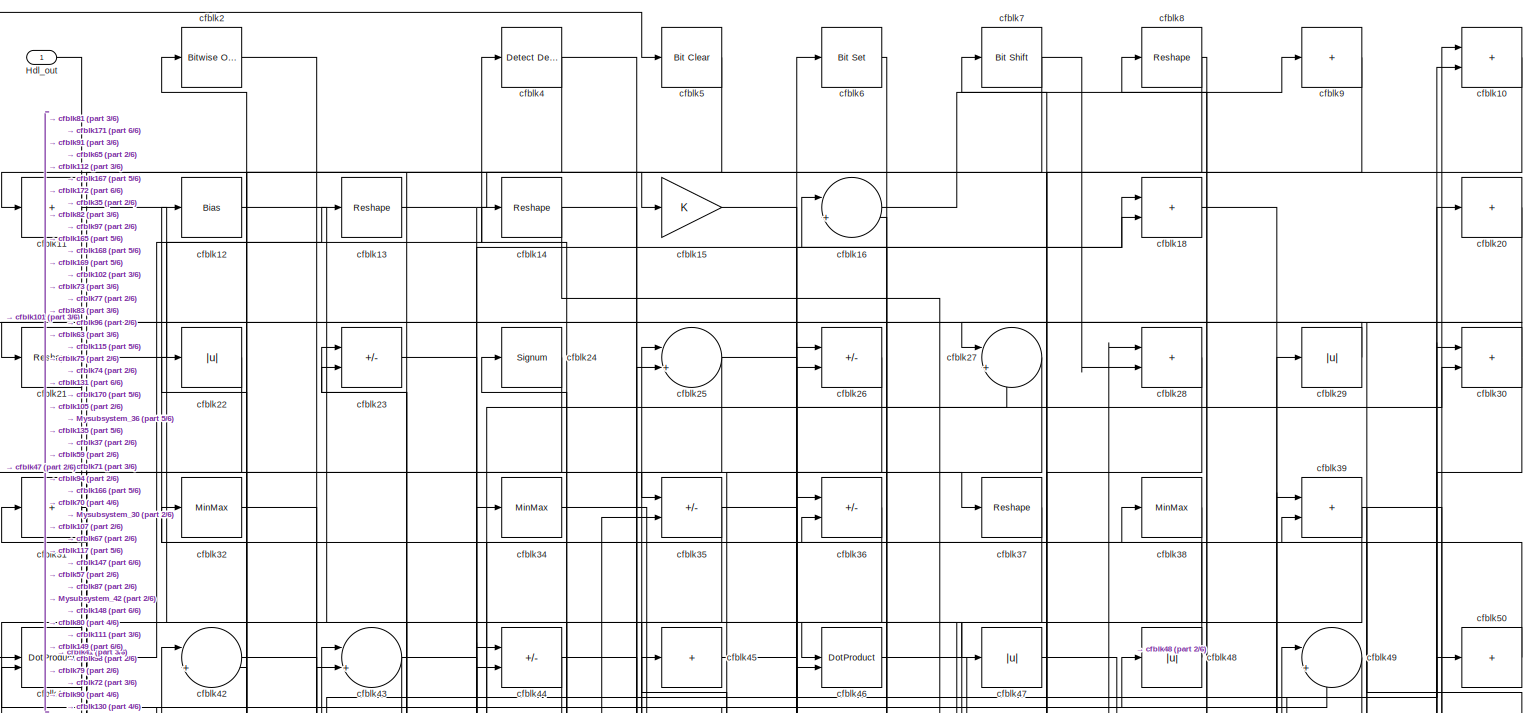
[diagram: root canvas - part 1/6, full width, top band]
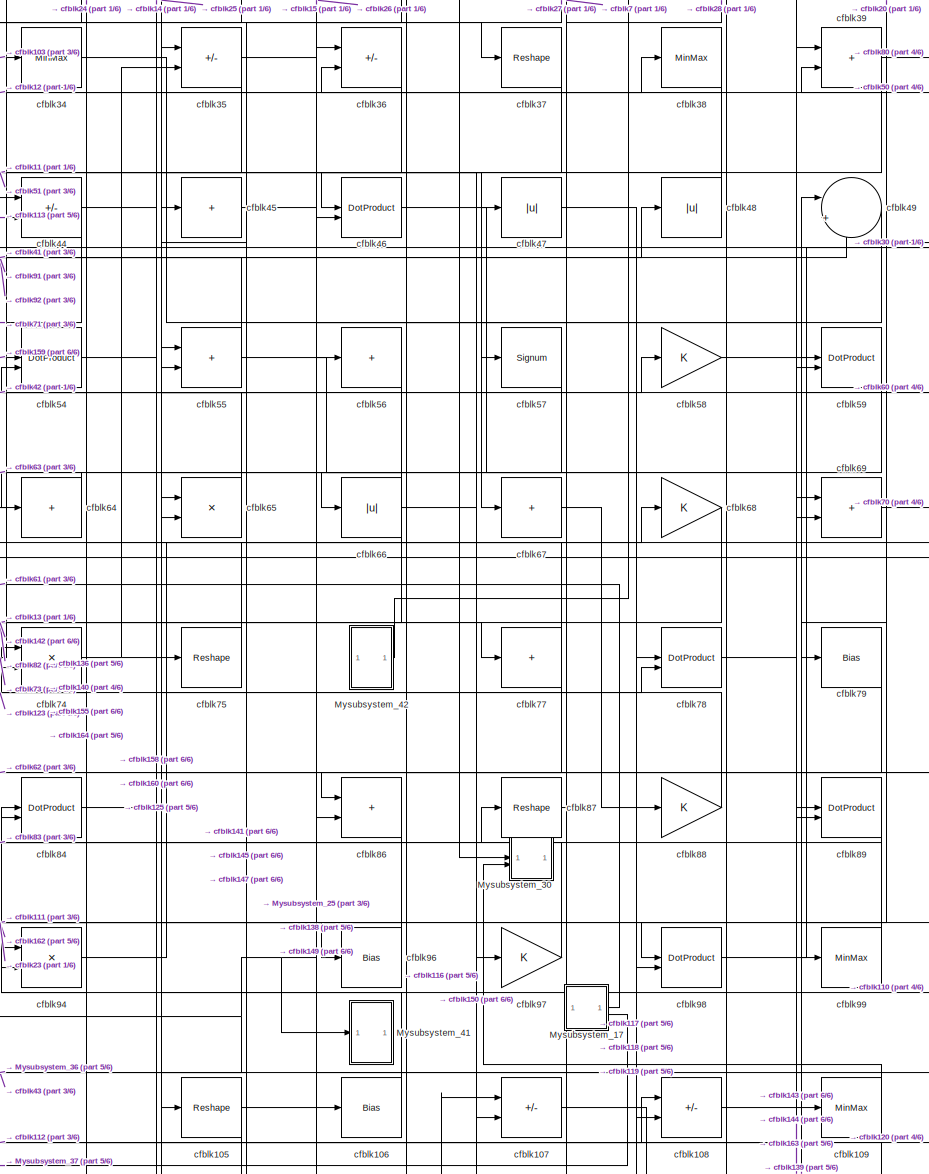
[diagram: root canvas - part 2/6, central region]
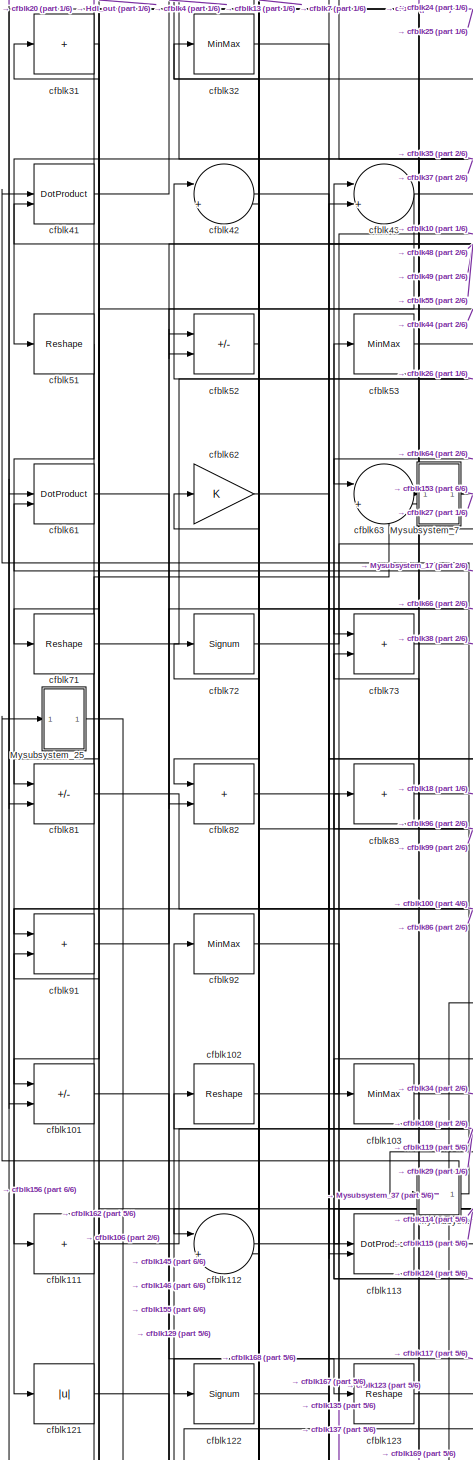
[diagram: root canvas - part 3/6, middle left region]
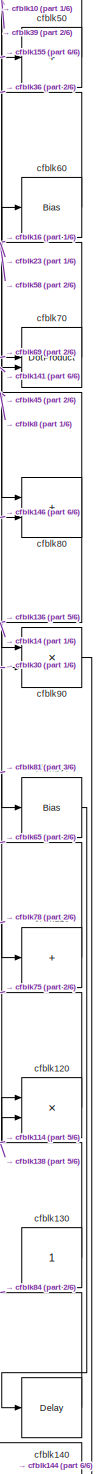
[diagram: root canvas - part 4/6, middle right region]
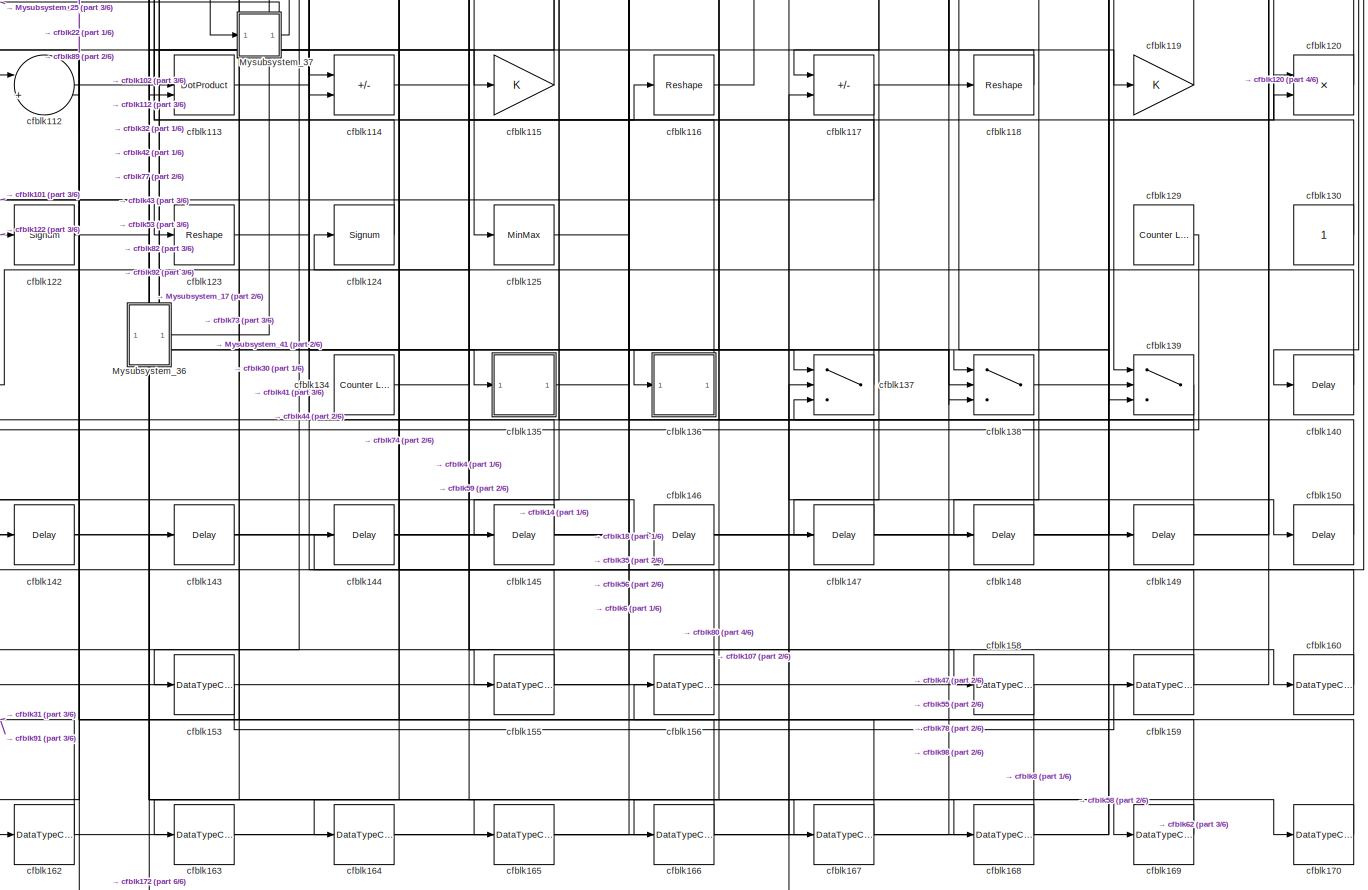
[diagram: root canvas - part 5/6, full width, bottom band]
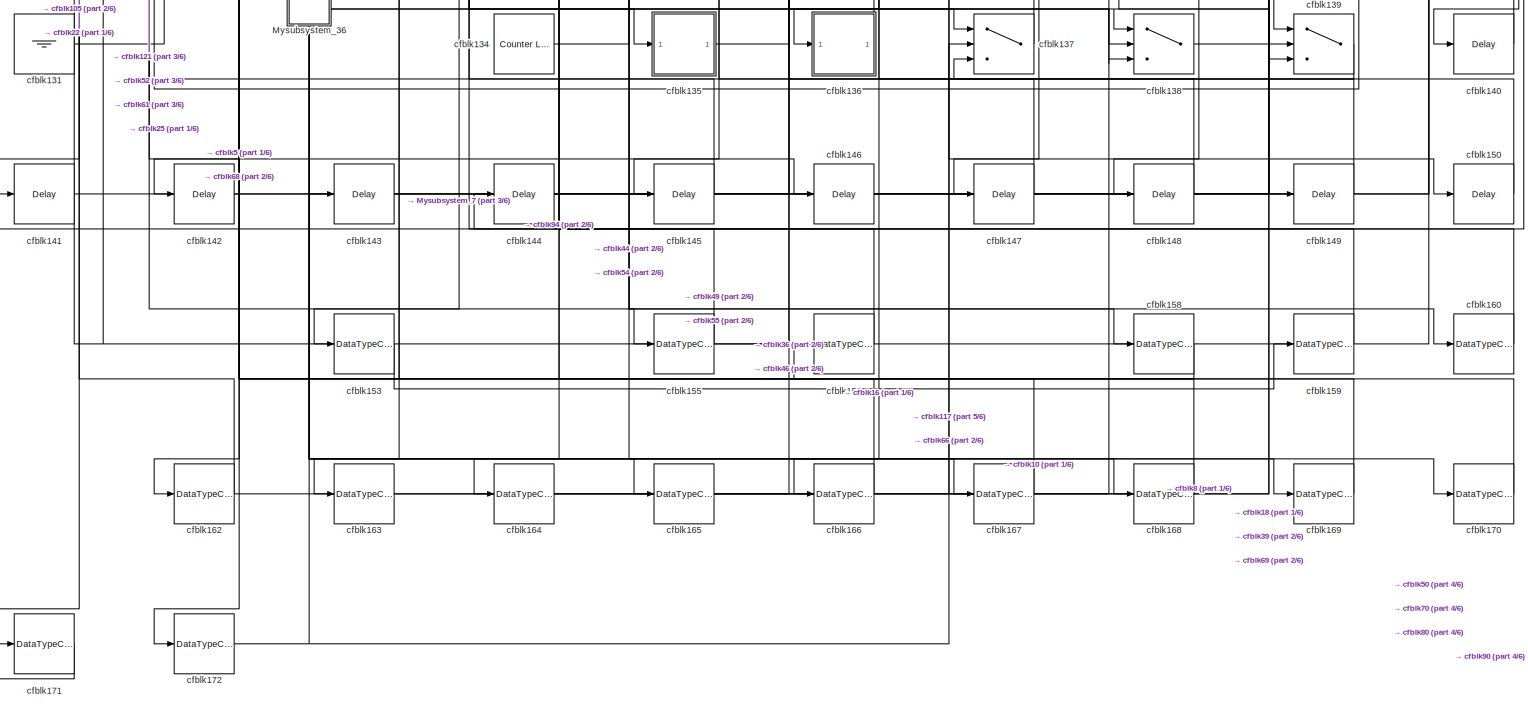
[diagram: root canvas - part 6/6, full width, bottom band]
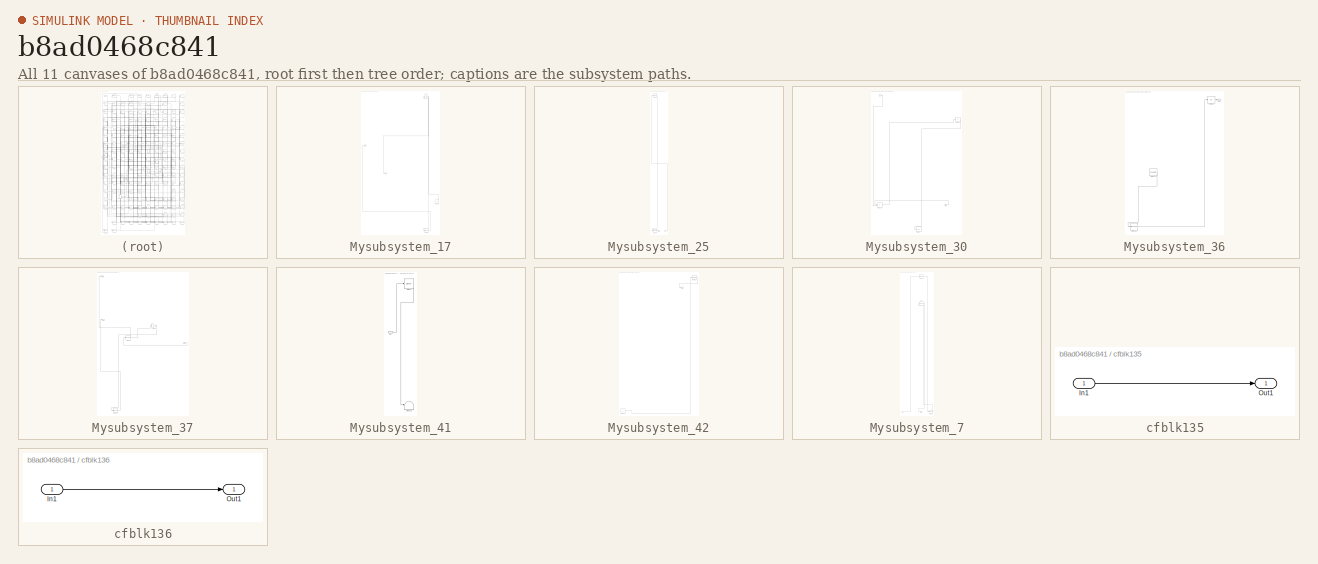
[diagram: thumbnail index - all 11 canvases of the model, root first then tree order]
MODEL slx_b8ad0468c841
KIND model
CONFIG AbsTol = auto
CONFIG EnableMultiTasking = off
CONFIG FixedStep = auto
CONFIG MaxStep = auto
CONFIG MinStep = auto
CONFIG RelTol = 1e-3
CONFIG SampleTimeConstraint = Unconstrained
CONFIG SolverName = VariableStepAuto
CONFIG StartTime = 0.0
CONFIG StopTime = 10.0
BLOCK [Outport] Hdl_out
  OutDataTypeStr = uint8
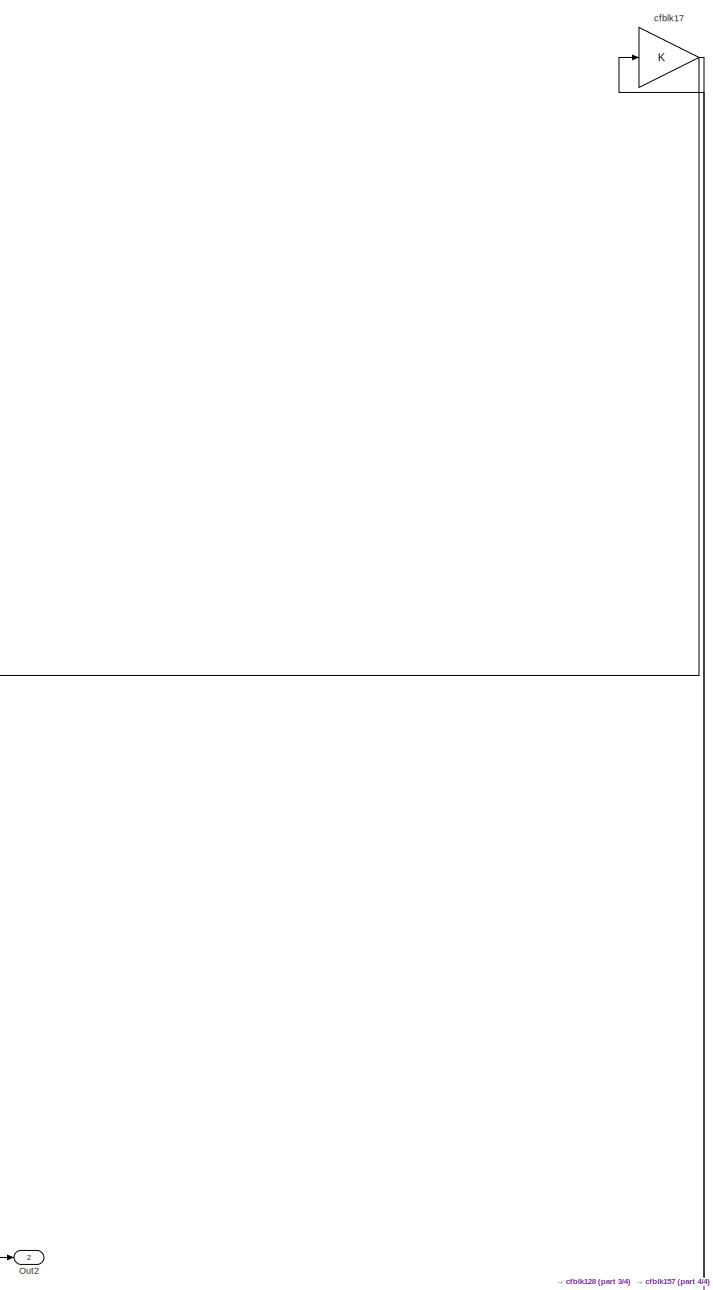
[diagram: Mysubsystem_17 - part 1/4, top center region]
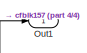
[diagram: Mysubsystem_17 - part 2/4, middle left region]
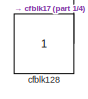
[diagram: Mysubsystem_17 - part 3/4, bottom right region]
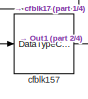
[diagram: Mysubsystem_17 - part 4/4, bottom right region]
BLOCK [SubSystem] Mysubsystem_17
  RTWFcnName = Mysubsystem_17
  RTWFcnNameOpts = User specified
  RTWFileNameOpts = Use function name
  RTWSystemCode = Reusable function
  TreatAsAtomicUnit = on
BLOCK [Outport] Mysubsystem_17/Out1
BLOCK [Outport] Mysubsystem_17/Out2
  Port = 2
BLOCK [Constant] Mysubsystem_17/cfblk128
  SampleTime = -1
BLOCK [DataTypeConversion] Mysubsystem_17/cfblk157
  OutDataTypeStr = uint8
  RndMeth = Floor
  SaturateOnIntegerOverflow = off
BLOCK [Gain] Mysubsystem_17/cfblk17
BLOCK [SubSystem] Mysubsystem_25
  RTWFcnName = Mysubsystem_25
  RTWFcnNameOpts = User specified
  RTWFileNameOpts = Use function name
  RTWSystemCode = Reusable function
  TreatAsAtomicUnit = on
BLOCK [Outport] Mysubsystem_25/Out1
BLOCK [Inport] Mysubsystem_25/U
BLOCK [Reference] Mysubsystem_25/cfblk1  REF=hdlsllib/Logic and Bit
Operations/Detect Rise
Nonnegative
  SourceBlock = hdlsllib/Logic and Bit\nOperations/Detect Rise\nNonnegative
  SourceType = Detect Rise Nonnegative
BLOCK [DataTypeConversion] Mysubsystem_25/cfblk151
  RndMeth = Floor
  SaturateOnIntegerOverflow = off
BLOCK [SubSystem] Mysubsystem_30
  RTWFcnName = Mysubsystem_30
  RTWFcnNameOpts = User specified
  RTWFileNameOpts = Use function name
  RTWSystemCode = Reusable function
  TreatAsAtomicUnit = on
BLOCK [Inport] Mysubsystem_30/In1
BLOCK [Inport] Mysubsystem_30/In2
  Port = 2
BLOCK [Product] Mysubsystem_30/cfblk104
  Inputs = */
  RndMeth = Zero
  SaturateOnIntegerOverflow = on
BLOCK [Display] Mysubsystem_30/cfblk127
  Decimation = 1
BLOCK [Sum] Mysubsystem_30/cfblk40
  IconShape = rectangular
  Inputs = +
BLOCK [SubSystem] Mysubsystem_36
  RTWFcnName = Mysubsystem_36
  RTWFcnNameOpts = User specified
  RTWFileNameOpts = Use function name
  RTWSystemCode = Reusable function
  TreatAsAtomicUnit = on
BLOCK [Outport] Mysubsystem_36/Out1
BLOCK [Reference] Mysubsystem_36/cfblk132  REF=hdlsllib/Sources/Counter
Free-Running
  SourceBlock = hdlsllib/Sources/Counter\nFree-Running
  SourceType = Counter Free-Running
BLOCK [DataTypeConversion] Mysubsystem_36/cfblk161
  OutDataTypeStr = uint8
  RndMeth = Floor
  SaturateOnIntegerOverflow = off
BLOCK [Abs] Mysubsystem_36/cfblk95
  SaturateOnIntegerOverflow = off
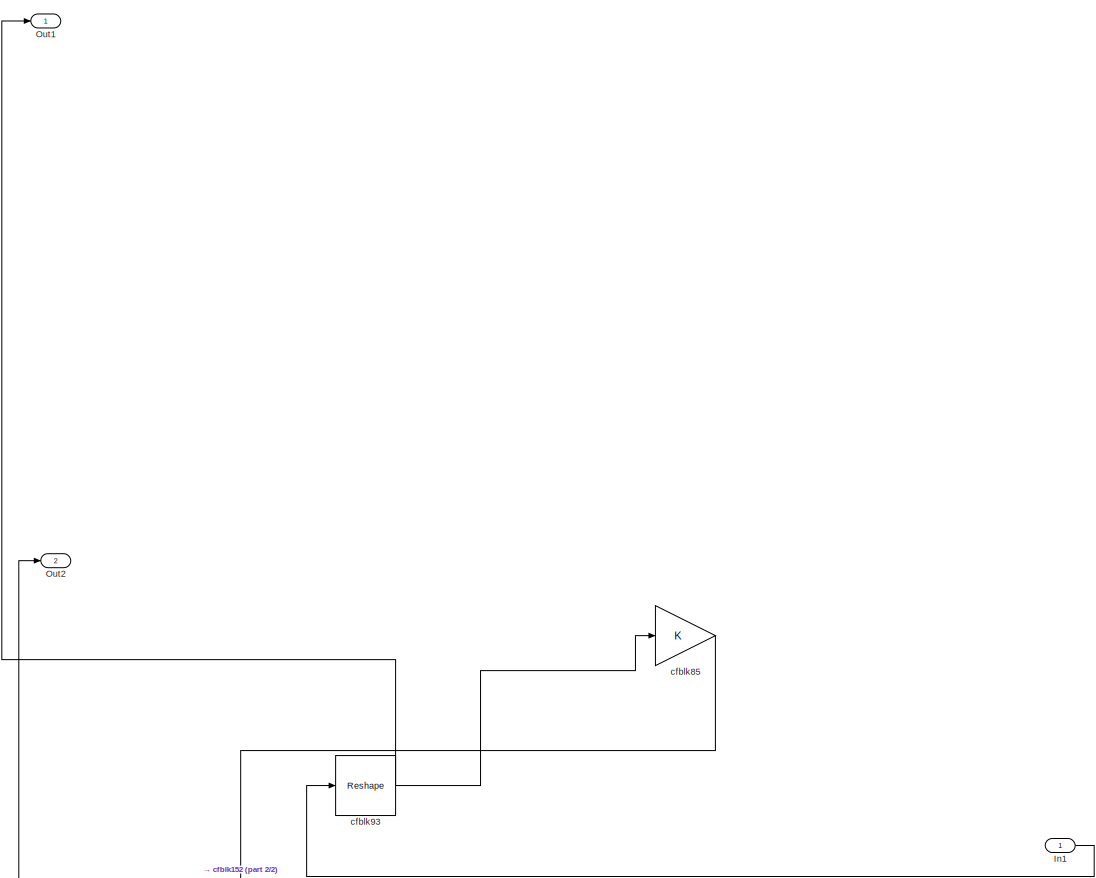
[diagram: Mysubsystem_37 - part 1/2, full width, top band]
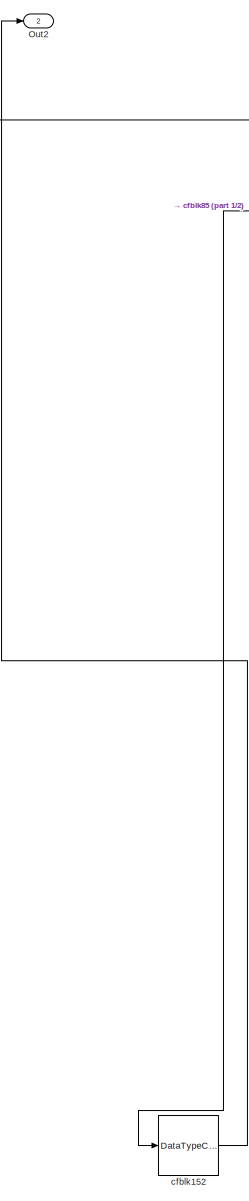
[diagram: Mysubsystem_37 - part 2/2, middle left region]
BLOCK [SubSystem] Mysubsystem_37
  RTWFcnName = Mysubsystem_37
  RTWFcnNameOpts = User specified
  RTWFileNameOpts = Use function name
  RTWSystemCode = Reusable function
  TreatAsAtomicUnit = on
BLOCK [Inport] Mysubsystem_37/In1
BLOCK [Outport] Mysubsystem_37/Out1
BLOCK [Outport] Mysubsystem_37/Out2
  Port = 2
BLOCK [DataTypeConversion] Mysubsystem_37/cfblk152
  OutDataTypeStr = uint8
  RndMeth = Floor
  SaturateOnIntegerOverflow = off
BLOCK [Gain] Mysubsystem_37/cfblk85
BLOCK [Reshape] Mysubsystem_37/cfblk93
BLOCK [SubSystem] Mysubsystem_41
  RTWFcnName = Mysubsystem_41
  RTWFcnNameOpts = User specified
  RTWFileNameOpts = Use function name
  RTWSystemCode = Reusable function
  TreatAsAtomicUnit = on
BLOCK [Inport] Mysubsystem_41/In1
BLOCK [Terminator] Mysubsystem_41/cfblk126
BLOCK [Signum] Mysubsystem_41/cfblk76
BLOCK [SubSystem] Mysubsystem_42
  RTWFcnName = Mysubsystem_42
  RTWFcnNameOpts = User specified
  RTWFileNameOpts = Use function name
  RTWSystemCode = Reusable function
  TreatAsAtomicUnit = on
BLOCK [Outport] Mysubsystem_42/Out1
BLOCK [Constant] Mysubsystem_42/cfblk133
  SampleTime = -1
BLOCK [Signum] Mysubsystem_42/cfblk19
BLOCK [SubSystem] Mysubsystem_7
  RTWFcnName = Mysubsystem_7
  RTWFcnNameOpts = User specified
  RTWFileNameOpts = Use function name
  RTWSystemCode = Reusable function
  TreatAsAtomicUnit = on
BLOCK [Outport] Mysubsystem_7/Out1
BLOCK [DataTypeConversion] Mysubsystem_7/cfblk154
  OutDataTypeStr = uint8
  RndMeth = Floor
  SaturateOnIntegerOverflow = off
BLOCK [Reference] Mysubsystem_7/cfblk3  REF=hdlsllib/Logic and Bit
Operations/Interval Test
  SourceBlock = hdlsllib/Logic and Bit\nOperations/Interval Test
  SourceType = Interval Test
BLOCK [Signum] Mysubsystem_7/cfblk33
BLOCK [Inport] Mysubsystem_7/u
BLOCK [Sum] cfblk10
  IconShape = rectangular
  OutDataTypeStr = uint8
BLOCK [Bias] cfblk100
  Bias = 0.0
  SaturateOnIntegerOverflow = off
BLOCK [Sum] cfblk101
  IconShape = rectangular
  Inputs = +-
  OutDataTypeStr = uint8
BLOCK [Reshape] cfblk102
BLOCK [MinMax] cfblk103
  OutDataTypeStr = uint8
BLOCK [Reshape] cfblk105
BLOCK [Bias] cfblk106
  Bias = 0.0
  SaturateOnIntegerOverflow = off
BLOCK [Sum] cfblk107
  IconShape = rectangular
  Inputs = +-
  OutDataTypeStr = uint8
BLOCK [Sum] cfblk108
  IconShape = rectangular
  Inputs = +-
  OutDataTypeStr = uint8
BLOCK [MinMax] cfblk109
  OutDataTypeStr = uint8
BLOCK [Sum] cfblk11
  IconShape = rectangular
  Inputs = +
  OutDataTypeStr = uint8
BLOCK [Sum] cfblk110
  IconShape = rectangular
  Inputs = +
  OutDataTypeStr = uint8
BLOCK [Sum] cfblk111
  IconShape = rectangular
  Inputs = +
  OutDataTypeStr = uint8
BLOCK [Sum] cfblk112
  Inputs = |++
  OutDataTypeStr = uint8
BLOCK [DotProduct] cfblk113
  OutDataTypeStr = uint8
BLOCK [Sum] cfblk114
  IconShape = rectangular
  Inputs = +-
  OutDataTypeStr = uint8
BLOCK [Gain] cfblk115
  OutDataTypeStr = uint8
BLOCK [Reshape] cfblk116
BLOCK [Sum] cfblk117
  IconShape = rectangular
  Inputs = +-
  OutDataTypeStr = uint8
BLOCK [Reshape] cfblk118
BLOCK [Gain] cfblk119
  OutDataTypeStr = uint8
BLOCK [Bias] cfblk12
  Bias = 0.0
  SaturateOnIntegerOverflow = off
BLOCK [Product] cfblk120
  Inputs = */
  OutDataTypeStr = uint8
  RndMeth = Zero
  SaturateOnIntegerOverflow = on
BLOCK [Abs] cfblk121
  OutDataTypeStr = uint8
  SaturateOnIntegerOverflow = off
BLOCK [Signum] cfblk122
BLOCK [Reshape] cfblk123
BLOCK [Signum] cfblk124
BLOCK [MinMax] cfblk125
  OutDataTypeStr = uint8
BLOCK [Reference] cfblk129  REF=hdlsllib/Sources/Counter
Limited
  SourceBlock = hdlsllib/Sources/Counter\nLimited
  SourceType = Counter Limited
BLOCK [Reshape] cfblk13
BLOCK [Constant] cfblk130
  OutDataTypeStr = uint8
  SampleTime = -1
BLOCK [Ground] cfblk131
BLOCK [Reference] cfblk134  REF=hdlsllib/Sources/Counter
Limited
  SourceBlock = hdlsllib/Sources/Counter\nLimited
  SourceType = Counter Limited
BLOCK [SubSystem] cfblk135
  LibrarySourceBlock = hdlsllib/Ports &\nSubsystems/Subsystem
BLOCK [Inport] cfblk135/In1
BLOCK [Outport] cfblk135/Out1
BLOCK [SubSystem] cfblk136
  LibrarySourceBlock = hdlsllib/Ports &\nSubsystems/Subsystem
BLOCK [Inport] cfblk136/In1
BLOCK [Outport] cfblk136/Out1
BLOCK [Switch] cfblk137
  InputSameDT = off
  OutDataTypeStr = uint8
  SaturateOnIntegerOverflow = off
BLOCK [Switch] cfblk138
  InputSameDT = off
  OutDataTypeStr = uint8
  SaturateOnIntegerOverflow = off
BLOCK [Switch] cfblk139
  InputSameDT = off
  OutDataTypeStr = uint8
  SaturateOnIntegerOverflow = off
BLOCK [Reshape] cfblk14
BLOCK [Delay] cfblk140
  InputPortMap = u0
  SampleTime = 1
BLOCK [Delay] cfblk141
  InputPortMap = u0
  SampleTime = 1
BLOCK [Delay] cfblk142
  InputPortMap = u0
  SampleTime = 1
BLOCK [Delay] cfblk143
  InputPortMap = u0
  SampleTime = 1
BLOCK [Delay] cfblk144
  InputPortMap = u0
  SampleTime = 1
BLOCK [Delay] cfblk145
  InputPortMap = u0
  SampleTime = 1
BLOCK [Delay] cfblk146
  InputPortMap = u0
  SampleTime = 1
BLOCK [Delay] cfblk147
  InputPortMap = u0
  SampleTime = 1
BLOCK [Delay] cfblk148
  InputPortMap = u0
  SampleTime = 1
BLOCK [Delay] cfblk149
  InputPortMap = u0
  SampleTime = 1
BLOCK [Gain] cfblk15
  OutDataTypeStr = uint8
BLOCK [Delay] cfblk150
  InputPortMap = u0
  SampleTime = 1
BLOCK [DataTypeConversion] cfblk153
  OutDataTypeStr = uint8
  RndMeth = Floor
  SaturateOnIntegerOverflow = off
BLOCK [DataTypeConversion] cfblk155
  OutDataTypeStr = uint8
  RndMeth = Floor
  SaturateOnIntegerOverflow = off
BLOCK [DataTypeConversion] cfblk156
  OutDataTypeStr = uint8
  RndMeth = Floor
  SaturateOnIntegerOverflow = off
BLOCK [DataTypeConversion] cfblk158
  OutDataTypeStr = uint8
  RndMeth = Floor
  SaturateOnIntegerOverflow = off
BLOCK [DataTypeConversion] cfblk159
  OutDataTypeStr = uint8
  RndMeth = Floor
  SaturateOnIntegerOverflow = off
BLOCK [Sum] cfblk16
  Inputs = |++
  OutDataTypeStr = uint8
BLOCK [DataTypeConversion] cfblk160
  OutDataTypeStr = uint8
  RndMeth = Floor
  SaturateOnIntegerOverflow = off
BLOCK [DataTypeConversion] cfblk162
  OutDataTypeStr = uint8
  RndMeth = Floor
  SaturateOnIntegerOverflow = off
BLOCK [DataTypeConversion] cfblk163
  OutDataTypeStr = uint8
  RndMeth = Floor
  SaturateOnIntegerOverflow = off
BLOCK [DataTypeConversion] cfblk164
  OutDataTypeStr = uint8
  RndMeth = Floor
  SaturateOnIntegerOverflow = off
BLOCK [DataTypeConversion] cfblk165
  OutDataTypeStr = uint8
  RndMeth = Floor
  SaturateOnIntegerOverflow = off
BLOCK [DataTypeConversion] cfblk166
  OutDataTypeStr = uint8
  RndMeth = Floor
  SaturateOnIntegerOverflow = off
BLOCK [DataTypeConversion] cfblk167
  OutDataTypeStr = uint8
  RndMeth = Floor
  SaturateOnIntegerOverflow = off
BLOCK [DataTypeConversion] cfblk168
  OutDataTypeStr = uint8
  RndMeth = Floor
  SaturateOnIntegerOverflow = off
BLOCK [DataTypeConversion] cfblk169
  OutDataTypeStr = uint8
  RndMeth = Floor
  SaturateOnIntegerOverflow = off
BLOCK [DataTypeConversion] cfblk170
  OutDataTypeStr = uint8
  RndMeth = Floor
  SaturateOnIntegerOverflow = off
BLOCK [DataTypeConversion] cfblk171
  OutDataTypeStr = uint8
  RndMeth = Floor
  SaturateOnIntegerOverflow = off
BLOCK [DataTypeConversion] cfblk172
  OutDataTypeStr = uint8
  RndMeth = Floor
  SaturateOnIntegerOverflow = off
BLOCK [Sum] cfblk18
  IconShape = rectangular
  OutDataTypeStr = uint8
BLOCK [Reference] cfblk2  REF=simulink/Logic and Bit
Operations/Bitwise
Operator
  LibrarySourceBlock = hdlsllib/Logic and Bit\nOperations/Bitwise\nOperator
  SourceBlock = simulink/Logic and Bit\nOperations/Bitwise\nOperator
  SourceType = Bitwise Operator
BLOCK [Sum] cfblk20
  IconShape = rectangular
  Inputs = +
  OutDataTypeStr = uint8
BLOCK [Reshape] cfblk21
BLOCK [Abs] cfblk22
  OutDataTypeStr = uint8
  SaturateOnIntegerOverflow = off
BLOCK [Sum] cfblk23
  IconShape = rectangular
  Inputs = +-
  OutDataTypeStr = uint8
BLOCK [Signum] cfblk24
BLOCK [Sum] cfblk25
  Inputs = |++
  OutDataTypeStr = uint8
BLOCK [Sum] cfblk26
  IconShape = rectangular
  Inputs = +-
  OutDataTypeStr = uint8
BLOCK [Sum] cfblk27
  Inputs = |++
  OutDataTypeStr = uint8
BLOCK [Sum] cfblk28
  IconShape = rectangular
  OutDataTypeStr = uint8
BLOCK [Abs] cfblk29
  OutDataTypeStr = uint8
  SaturateOnIntegerOverflow = off
BLOCK [Sum] cfblk30
  IconShape = rectangular
  OutDataTypeStr = uint8
BLOCK [Sum] cfblk31
  IconShape = rectangular
  Inputs = +
  OutDataTypeStr = uint8
BLOCK [MinMax] cfblk32
  OutDataTypeStr = uint8
BLOCK [MinMax] cfblk34
  OutDataTypeStr = uint8
BLOCK [Sum] cfblk35
  IconShape = rectangular
  Inputs = +-
  OutDataTypeStr = uint8
BLOCK [Sum] cfblk36
  IconShape = rectangular
  Inputs = +-
  OutDataTypeStr = uint8
BLOCK [Reshape] cfblk37
BLOCK [MinMax] cfblk38
  OutDataTypeStr = uint8
BLOCK [Sum] cfblk39
  IconShape = rectangular
  OutDataTypeStr = uint8
BLOCK [Reference] cfblk4  REF=simulink/Logic and Bit
Operations/Detect
Decrease
  LibrarySourceBlock = hdlsllib/Logic and Bit\nOperations/Detect\nDecrease
  SourceBlock = simulink/Logic and Bit\nOperations/Detect\nDecrease
  SourceType = Detect Decrease
BLOCK [DotProduct] cfblk41
  OutDataTypeStr = uint8
BLOCK [Sum] cfblk42
  Inputs = |++
  OutDataTypeStr = uint8
BLOCK [Sum] cfblk43
  Inputs = |++
  OutDataTypeStr = uint8
BLOCK [Sum] cfblk44
  IconShape = rectangular
  Inputs = +-
  OutDataTypeStr = uint8
BLOCK [Sum] cfblk45
  IconShape = rectangular
  Inputs = +
  OutDataTypeStr = uint8
BLOCK [DotProduct] cfblk46
  OutDataTypeStr = uint8
BLOCK [Abs] cfblk47
  OutDataTypeStr = uint8
  SaturateOnIntegerOverflow = off
BLOCK [Abs] cfblk48
  OutDataTypeStr = uint8
  SaturateOnIntegerOverflow = off
BLOCK [Sum] cfblk49
  Inputs = |++
  OutDataTypeStr = uint8
BLOCK [Reference] cfblk5  REF=simulink/Logic and Bit
Operations/Bit Clear
  LibrarySourceBlock = hdlsllib/Logic and Bit\nOperations/Bit Clear
  SourceBlock = simulink/Logic and Bit\nOperations/Bit Clear
  SourceType = Bit Clear
BLOCK [Sum] cfblk50
  IconShape = rectangular
  Inputs = +
  OutDataTypeStr = uint8
BLOCK [Reshape] cfblk51
BLOCK [Sum] cfblk52
  IconShape = rectangular
  Inputs = +-
  OutDataTypeStr = uint8
BLOCK [MinMax] cfblk53
  OutDataTypeStr = uint8
BLOCK [DotProduct] cfblk54
  OutDataTypeStr = uint8
BLOCK [Sum] cfblk55
  IconShape = rectangular
  OutDataTypeStr = uint8
BLOCK [Sum] cfblk56
  IconShape = rectangular
  Inputs = +
  OutDataTypeStr = uint8
BLOCK [Signum] cfblk57
BLOCK [Gain] cfblk58
  OutDataTypeStr = uint8
BLOCK [DotProduct] cfblk59
  OutDataTypeStr = uint8
BLOCK [Reference] cfblk6  REF=simulink/Logic and Bit
Operations/Bit Set
  LibrarySourceBlock = hdlsllib/Logic and Bit\nOperations/Bit Set
  SourceBlock = simulink/Logic and Bit\nOperations/Bit Set
  SourceType = Bit Set
BLOCK [Bias] cfblk60
  Bias = 0.0
  SaturateOnIntegerOverflow = off
BLOCK [DotProduct] cfblk61
  OutDataTypeStr = uint8
BLOCK [Gain] cfblk62
  OutDataTypeStr = uint8
BLOCK [Sum] cfblk63
  Inputs = |++
  OutDataTypeStr = uint8
BLOCK [Sum] cfblk64
  IconShape = rectangular
  Inputs = +
  OutDataTypeStr = uint8
BLOCK [Product] cfblk65
  Inputs = */
  OutDataTypeStr = uint8
  RndMeth = Zero
  SaturateOnIntegerOverflow = on
BLOCK [Abs] cfblk66
  OutDataTypeStr = uint8
  SaturateOnIntegerOverflow = off
BLOCK [Sum] cfblk67
  IconShape = rectangular
  Inputs = +
  OutDataTypeStr = uint8
BLOCK [Gain] cfblk68
  OutDataTypeStr = uint8
BLOCK [Sum] cfblk69
  IconShape = rectangular
  OutDataTypeStr = uint8
BLOCK [Reference] cfblk7  REF=hdlsllib/Logic and Bit
Operations/Bit Shift
  SourceBlock = hdlsllib/Logic and Bit\nOperations/Bit Shift
  SourceType = Bit Shift
BLOCK [DotProduct] cfblk70
  OutDataTypeStr = uint8
BLOCK [Reshape] cfblk71
BLOCK [Signum] cfblk72
BLOCK [Sum] cfblk73
  IconShape = rectangular
  OutDataTypeStr = uint8
BLOCK [Product] cfblk74
  Inputs = */
  OutDataTypeStr = uint8
  RndMeth = Zero
  SaturateOnIntegerOverflow = on
BLOCK [Reshape] cfblk75
BLOCK [Sum] cfblk77
  IconShape = rectangular
  Inputs = +
  OutDataTypeStr = uint8
BLOCK [DotProduct] cfblk78
  OutDataTypeStr = uint8
BLOCK [Bias] cfblk79
  Bias = 0.0
  SaturateOnIntegerOverflow = off
BLOCK [Reshape] cfblk8
BLOCK [Sum] cfblk80
  IconShape = rectangular
  OutDataTypeStr = uint8
BLOCK [Sum] cfblk81
  IconShape = rectangular
  Inputs = +-
  OutDataTypeStr = uint8
BLOCK [Sum] cfblk82
  IconShape = rectangular
  OutDataTypeStr = uint8
BLOCK [Sum] cfblk83
  IconShape = rectangular
  Inputs = +
  OutDataTypeStr = uint8
BLOCK [DotProduct] cfblk84
  OutDataTypeStr = uint8
BLOCK [Sum] cfblk86
  IconShape = rectangular
  OutDataTypeStr = uint8
BLOCK [Reshape] cfblk87
BLOCK [Gain] cfblk88
  OutDataTypeStr = uint8
BLOCK [DotProduct] cfblk89
  OutDataTypeStr = uint8
BLOCK [Sum] cfblk9
  IconShape = rectangular
  Inputs = +
  OutDataTypeStr = uint8
BLOCK [Product] cfblk90
  Inputs = */
  OutDataTypeStr = uint8
  RndMeth = Zero
  SaturateOnIntegerOverflow = on
BLOCK [Sum] cfblk91
  IconShape = rectangular
  OutDataTypeStr = uint8
BLOCK [MinMax] cfblk92
  OutDataTypeStr = uint8
BLOCK [Product] cfblk94
  Inputs = */
  OutDataTypeStr = uint8
  RndMeth = Zero
  SaturateOnIntegerOverflow = on
BLOCK [Bias] cfblk96
  Bias = 0.0
  SaturateOnIntegerOverflow = off
BLOCK [Gain] cfblk97
  OutDataTypeStr = uint8
BLOCK [DotProduct] cfblk98
  OutDataTypeStr = uint8
BLOCK [MinMax] cfblk99
  OutDataTypeStr = uint8
LINE Mysubsystem_17/cfblk128:1 -> Mysubsystem_17/cfblk17:1
LINE Mysubsystem_17/cfblk157:1 -> Mysubsystem_17/Out1:1
NET Mysubsystem_17/cfblk17:1 -> Mysubsystem_17/Out2:1, Mysubsystem_17/cfblk157:1
LINE Mysubsystem_17:1 -> cfblk61:2
LINE Mysubsystem_17:2 -> Mysubsystem_37:1
LINE Mysubsystem_25/U:1 -> Mysubsystem_25/cfblk1:1
LINE Mysubsystem_25/cfblk151:1 -> Mysubsystem_25/Out1:1
LINE Mysubsystem_25/cfblk1:1 -> Mysubsystem_25/cfblk151:1
NET Mysubsystem_25:1 -> Mysubsystem_7:1, cfblk106:1
LINE Mysubsystem_30/In1:1 -> Mysubsystem_30/cfblk104:2
LINE Mysubsystem_30/In2:1 -> Mysubsystem_30/cfblk104:1
LINE Mysubsystem_30/cfblk104:1 -> Mysubsystem_30/cfblk40:1
LINE Mysubsystem_30/cfblk40:1 -> Mysubsystem_30/cfblk127:1
LINE Mysubsystem_36/cfblk132:1 -> Mysubsystem_36/cfblk161:1
LINE Mysubsystem_36/cfblk161:1 -> Mysubsystem_36/cfblk95:1
LINE Mysubsystem_36/cfblk95:1 -> Mysubsystem_36/Out1:1
NET Mysubsystem_36:1 -> Mysubsystem_41:1, cfblk163:1, cfblk30:2
LINE Mysubsystem_37/In1:1 -> Mysubsystem_37/cfblk93:1
LINE Mysubsystem_37/cfblk152:1 -> Mysubsystem_37/Out2:1
LINE Mysubsystem_37/cfblk85:1 -> Mysubsystem_37/cfblk152:1
NET Mysubsystem_37/cfblk93:1 -> Mysubsystem_37/Out1:1, Mysubsystem_37/cfblk85:1
LINE Mysubsystem_37:1 -> cfblk41:1
LINE Mysubsystem_37:2 -> Mysubsystem_25:1
LINE Mysubsystem_41/In1:1 -> Mysubsystem_41/cfblk76:1
LINE Mysubsystem_41/cfblk76:1 -> Mysubsystem_41/cfblk126:1
LINE Mysubsystem_42/cfblk133:1 -> Mysubsystem_42/cfblk19:1
LINE Mysubsystem_42/cfblk19:1 -> Mysubsystem_42/Out1:1
LINE Mysubsystem_42:1 -> cfblk28:1
LINE Mysubsystem_7/cfblk154:1 -> Mysubsystem_7/cfblk33:1
LINE Mysubsystem_7/cfblk33:1 -> Mysubsystem_7/Out1:1
LINE Mysubsystem_7/cfblk3:1 -> Mysubsystem_7/cfblk154:1
LINE Mysubsystem_7/u:1 -> Mysubsystem_7/cfblk3:1
LINE Mysubsystem_7:1 -> cfblk153:1
LINE cfblk100:1 -> cfblk140:1
LINE cfblk101:1 -> cfblk123:1
NET cfblk102:1 -> cfblk10:2, cfblk114:2
LINE cfblk103:1 -> cfblk34:1
NET cfblk105:1 -> cfblk141:1, cfblk68:1
LINE cfblk106:1 -> cfblk84:1
LINE cfblk107:1 -> cfblk139:2
LINE cfblk108:1 -> cfblk49:1
LINE cfblk109:1 -> Mysubsystem_30:2
LINE cfblk10:1 -> cfblk147:1
LINE cfblk110:1 -> cfblk65:2
LINE cfblk111:1 -> cfblk29:1
NET cfblk112:1 -> cfblk108:1, cfblk115:1
NET cfblk113:1 -> cfblk138:3, cfblk44:2
LINE cfblk114:1 -> cfblk120:2
LINE cfblk115:1 -> cfblk14:1
LINE cfblk116:1 -> cfblk107:1
NET cfblk117:1 -> cfblk122:1, cfblk78:1
LINE cfblk118:1 -> cfblk113:1
LINE cfblk119:1 -> cfblk62:1
LINE cfblk11:1 -> cfblk67:1
LINE cfblk120:1 -> cfblk75:1
LINE cfblk121:1 -> cfblk146:1
LINE cfblk122:1 -> cfblk167:1
NET cfblk123:1 -> cfblk138:1, cfblk139:3, cfblk78:2
LINE cfblk124:1 -> cfblk43:1
LINE cfblk125:1 -> cfblk56:1
LINE cfblk129:1 -> cfblk92:1
LINE cfblk12:1 -> cfblk107:2
LINE cfblk130:1 -> cfblk10:1
LINE cfblk131:1 -> cfblk25:2
LINE cfblk134:1 -> cfblk116:1
LINE cfblk135/In1:1 -> cfblk135/Out1:1
LINE cfblk135:1 -> cfblk18:2
LINE cfblk136/In1:1 -> cfblk136/Out1:1
LINE cfblk136:1 -> cfblk74:1
LINE cfblk137:1 -> cfblk53:1
LINE cfblk138:1 -> cfblk120:1
LINE cfblk139:1 -> cfblk137:3
NET cfblk13:1 -> cfblk15:1, cfblk77:1
LINE cfblk140:1 -> cfblk84:2
LINE cfblk141:1 -> cfblk70:2
LINE cfblk142:1 -> cfblk46:2
LINE cfblk143:1 -> cfblk69:1
LINE cfblk144:1 -> cfblk39:1
LINE cfblk145:1 -> cfblk52:1
LINE cfblk146:1 -> cfblk80:2
LINE cfblk147:1 -> cfblk55:2
LINE cfblk148:1 -> cfblk16:2
LINE cfblk149:1 -> cfblk36:1
NET cfblk14:1 -> Mysubsystem_30:1, cfblk90:1
LINE cfblk150:1 -> cfblk44:1
LINE cfblk153:1 -> cfblk159:1
NET cfblk155:1 -> cfblk50:1, cfblk94:2
LINE cfblk156:1 -> cfblk61:1
LINE cfblk158:1 -> cfblk156:1
LINE cfblk159:1 -> cfblk54:1
NET cfblk15:1 -> cfblk37:1, cfblk59:2
LINE cfblk160:1 -> cfblk54:2
NET cfblk162:1 -> cfblk137:2, cfblk31:1, cfblk91:2, cfblk98:2
LINE cfblk163:1 -> cfblk89:1
LINE cfblk164:1 -> cfblk89:2
LINE cfblk165:1 -> cfblk6:1
LINE cfblk166:1 -> cfblk124:1
LINE cfblk167:1 -> cfblk2:1
LINE cfblk168:1 -> cfblk102:1
NET cfblk169:1 -> cfblk22:1, cfblk73:2
LINE cfblk16:1 -> cfblk9:1
LINE cfblk170:1 -> cfblk32:1
LINE cfblk171:1 -> cfblk5:1
NET cfblk172:1 -> cfblk117:2, cfblk143:1
LINE cfblk18:1 -> cfblk149:1
NET cfblk20:1 -> cfblk101:2, cfblk79:1
LINE cfblk21:1 -> cfblk4:1
LINE cfblk22:1 -> cfblk171:1
LINE cfblk23:1 -> cfblk96:1
LINE cfblk24:1 -> cfblk81:1
NET cfblk25:1 -> cfblk47:1, cfblk81:2
LINE cfblk26:1 -> cfblk105:1
NET cfblk27:1 -> cfblk112:2, cfblk35:1
LINE cfblk28:1 -> cfblk57:1
LINE cfblk29:1 -> cfblk21:1
LINE cfblk2:1 -> cfblk168:1
NET cfblk30:1 -> cfblk27:1, cfblk90:2
LINE cfblk31:1 -> cfblk101:1
LINE cfblk32:1 -> cfblk169:1
LINE cfblk34:1 -> cfblk97:1
NET cfblk35:1 -> cfblk138:2, cfblk51:1
LINE cfblk36:1 -> cfblk46:1
LINE cfblk37:1 -> cfblk103:1
LINE cfblk38:1 -> cfblk65:1
NET cfblk39:1 -> cfblk80:1, cfblk94:1, cfblk99:1
LINE cfblk41:1 -> cfblk13:1
LINE cfblk42:1 -> cfblk165:1
NET cfblk43:1 -> cfblk108:2, cfblk52:2
NET cfblk44:1 -> cfblk160:1, cfblk71:1
NET cfblk45:1 -> cfblk109:1, cfblk59:1
LINE cfblk46:1 -> cfblk69:2
LINE cfblk47:1 -> cfblk119:1
LINE cfblk48:1 -> cfblk12:1
LINE cfblk49:1 -> cfblk145:1
NET cfblk4:1 -> cfblk170:1, cfblk91:1
LINE cfblk50:1 -> cfblk39:2
LINE cfblk51:1 -> cfblk121:1
LINE cfblk52:1 -> cfblk112:1
LINE cfblk53:1 -> cfblk114:1
LINE cfblk54:1 -> cfblk158:1
NET cfblk55:1 -> cfblk118:1, cfblk41:2
LINE cfblk56:1 -> cfblk164:1
LINE cfblk57:1 -> cfblk66:1
NET cfblk58:1 -> cfblk139:1, cfblk60:1
LINE cfblk59:1 -> cfblk125:1
LINE cfblk5:1 -> cfblk172:1
LINE cfblk60:1 -> cfblk36:2
LINE cfblk61:1 -> cfblk155:1
LINE cfblk62:1 -> cfblk86:2
LINE cfblk63:1 -> cfblk27:2
LINE cfblk64:1 -> cfblk63:1
LINE cfblk65:1 -> cfblk42:1
NET cfblk66:1 -> cfblk150:1, cfblk64:1, cfblk82:2
LINE cfblk67:1 -> cfblk88:1
LINE cfblk68:1 -> cfblk142:1
LINE cfblk69:1 -> cfblk70:1
LINE cfblk6:1 -> cfblk166:1
NET cfblk70:1 -> cfblk16:1, cfblk23:1
LINE cfblk71:1 -> cfblk26:2
LINE cfblk72:1 -> cfblk20:1
LINE cfblk73:1 -> cfblk38:1
NET cfblk74:1 -> cfblk25:1, cfblk35:2
LINE cfblk75:1 -> cfblk24:1
NET cfblk77:1 -> cfblk113:2, cfblk23:2
NET cfblk78:1 -> cfblk110:1, cfblk98:1
LINE cfblk79:1 -> cfblk86:1
NET cfblk7:1 -> cfblk28:2, cfblk82:1
NET cfblk80:1 -> cfblk136:1, cfblk45:1, cfblk8:1
NET cfblk81:1 -> Hdl_out:1, cfblk100:1
LINE cfblk82:1 -> cfblk135:1
LINE cfblk83:1 -> cfblk18:1
LINE cfblk84:1 -> cfblk58:1
LINE cfblk86:1 -> cfblk111:1
LINE cfblk87:1 -> cfblk7:1
LINE cfblk88:1 -> cfblk55:1
LINE cfblk89:1 -> cfblk162:1
NET cfblk8:1 -> cfblk117:1, cfblk148:1
LINE cfblk90:1 -> cfblk144:1
LINE cfblk91:1 -> cfblk48:1
NET cfblk92:1 -> cfblk137:1, cfblk43:2, cfblk49:2, cfblk72:1
LINE cfblk94:1 -> cfblk26:1
NET cfblk96:1 -> cfblk63:2, cfblk74:2
LINE cfblk97:1 -> cfblk42:2
LINE cfblk98:1 -> cfblk30:1
NET cfblk99:1 -> cfblk83:1, cfblk87:1
NET cfblk9:1 -> cfblk11:1, cfblk73:1
note: NET lines group one-source signal fan-out (src -> all destinations, sorted); 1:1 wires keep LINE
